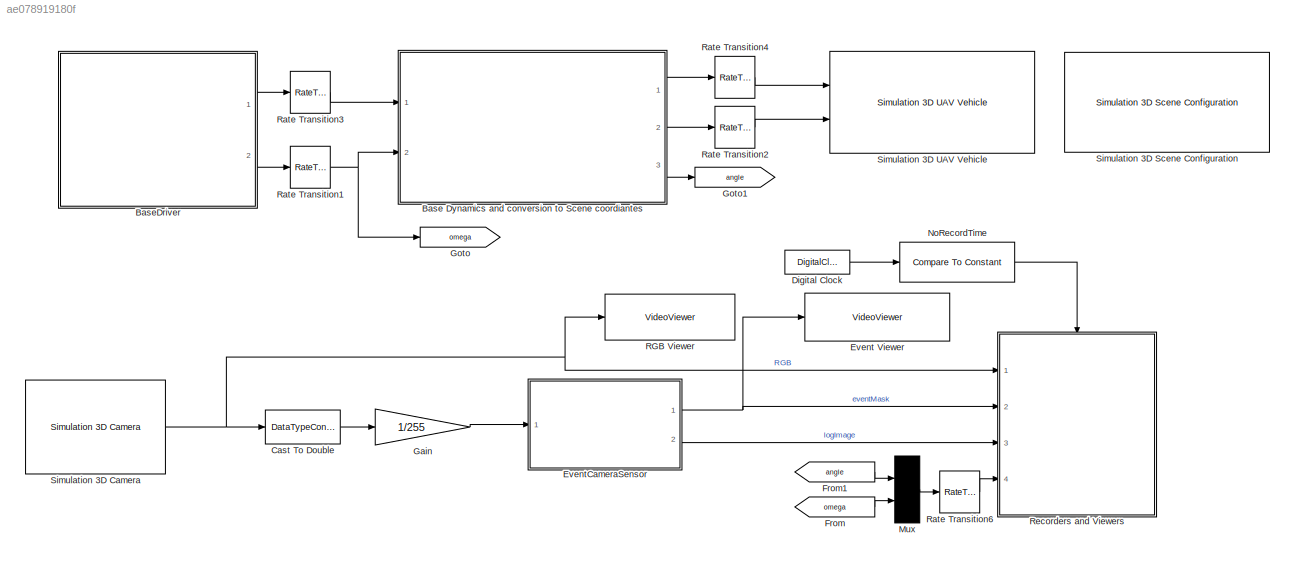
MODEL slx_ae078919180f
KIND model
CONFIG AbsTol = auto
CONFIG EnableMultiTasking = off
CONFIG FixedStep = auto
CONFIG MaxStep = auto
CONFIG MinStep = auto
CONFIG RelTol = 1e-3
CONFIG SampleTimeConstraint = Unconstrained
CONFIG SolverName = VariableStepAuto
CONFIG StartTime = 0.0
CONFIG StopTime = 100
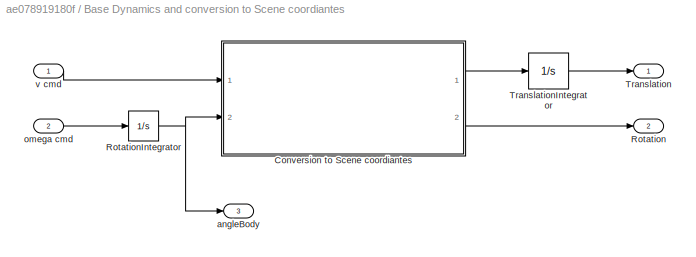
BLOCK [SubSystem] Base Dynamics and conversion to Scene coordiantes
  Ports = [2, 3]
  RequestExecContextInheritance = off
  TreatAsAtomicUnit = on
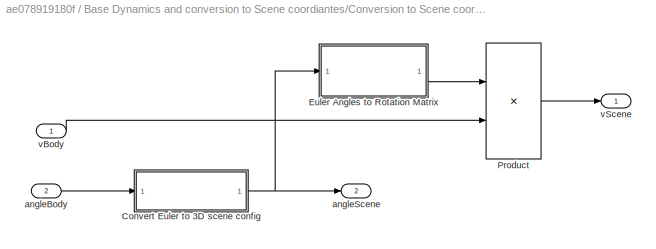
BLOCK [SubSystem] Base Dynamics and conversion to Scene coordiantes/Conversion to Scene coordiantes
  Ports = [2, 2]
  RequestExecContextInheritance = off
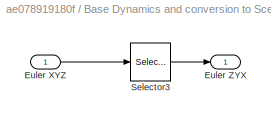
BLOCK [SubSystem] Base Dynamics and conversion to Scene coordiantes/Conversion to Scene coordiantes/Convert Euler to 3D scene config
  Ports = [1, 1]
  RequestExecContextInheritance = off
BLOCK [Inport] Base Dynamics and conversion to Scene coordiantes/Conversion to Scene coordiantes/Convert Euler to 3D scene config/Euler XYZ
BLOCK [Outport] Base Dynamics and conversion to Scene coordiantes/Conversion to Scene coordiantes/Convert Euler to 3D scene config/Euler ZYX
BLOCK [Selector] Base Dynamics and conversion to Scene coordiantes/Conversion to Scene coordiantes/Convert Euler to 3D scene config/Selector3
  IndexOptions = Index vector (dialog)
  Indices = [3 2 1]
  InputPortWidth = 3
  OutputSizes = 1
  Ports = [1, 1]
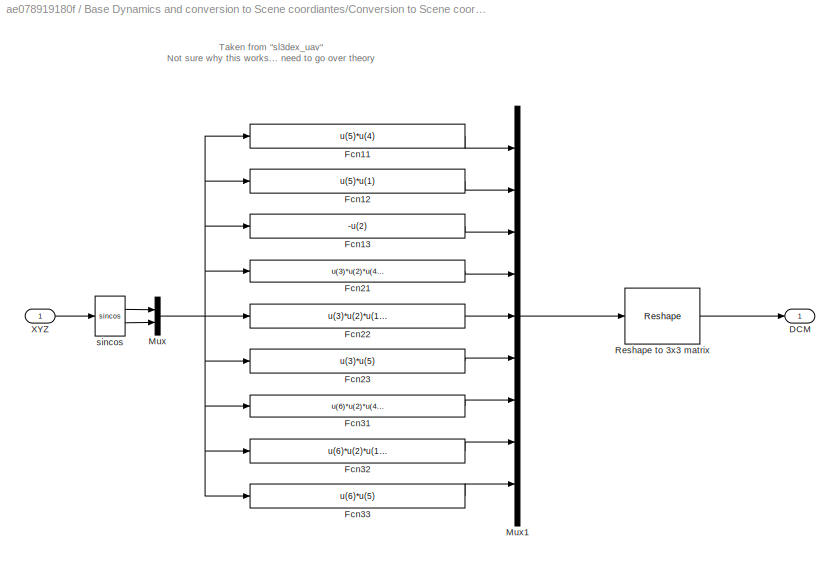
BLOCK [SubSystem] Base Dynamics and conversion to Scene coordiantes/Conversion to Scene coordiantes/Euler Angles to Rotation Matrix
  Ports = [1, 1]
  RequestExecContextInheritance = off
BLOCK [Outport] Base Dynamics and conversion to Scene coordiantes/Conversion to Scene coordiantes/Euler Angles to Rotation Matrix/DCM
  NameLocation = top
  PortDimensions = [3,3]
  Unit = 1
  VectorParamsAs1DForOutWhenUnconnected = off
BLOCK [Fcn] Base Dynamics and conversion to Scene coordiantes/Conversion to Scene coordiantes/Euler Angles to Rotation Matrix/Fcn11
  Expr = u(5)*u(4)
BLOCK [Fcn] Base Dynamics and conversion to Scene coordiantes/Conversion to Scene coordiantes/Euler Angles to Rotation Matrix/Fcn12
  Expr = u(5)*u(1)
BLOCK [Fcn] Base Dynamics and conversion to Scene coordiantes/Conversion to Scene coordiantes/Euler Angles to Rotation Matrix/Fcn13
  Expr = -u(2)
BLOCK [Fcn] Base Dynamics and conversion to Scene coordiantes/Conversion to Scene coordiantes/Euler Angles to Rotation Matrix/Fcn21
  Expr = u(3)*u(2)*u(4) - u(6)*u(1)
BLOCK [Fcn] Base Dynamics and conversion to Scene coordiantes/Conversion to Scene coordiantes/Euler Angles to Rotation Matrix/Fcn22
  Expr = u(3)*u(2)*u(1) + u(6)*u(4)
BLOCK [Fcn] Base Dynamics and conversion to Scene coordiantes/Conversion to Scene coordiantes/Euler Angles to Rotation Matrix/Fcn23
  Expr = u(3)*u(5)
BLOCK [Fcn] Base Dynamics and conversion to Scene coordiantes/Conversion to Scene coordiantes/Euler Angles to Rotation Matrix/Fcn31
  Expr = u(6)*u(2)*u(4) + u(3)*u(1)
BLOCK [Fcn] Base Dynamics and conversion to Scene coordiantes/Conversion to Scene coordiantes/Euler Angles to Rotation Matrix/Fcn32
  Expr = u(6)*u(2)*u(1) - u(3)*u(4)
BLOCK [Fcn] Base Dynamics and conversion to Scene coordiantes/Conversion to Scene coordiantes/Euler Angles to Rotation Matrix/Fcn33
  Expr = u(6)*u(5)
BLOCK [Mux] Base Dynamics and conversion to Scene coordiantes/Conversion to Scene coordiantes/Euler Angles to Rotation Matrix/Mux
  DisplayOption = bar
  Inputs = 2
  Ports = [2, 1]
BLOCK [Mux] Base Dynamics and conversion to Scene coordiantes/Conversion to Scene coordiantes/Euler Angles to Rotation Matrix/Mux1
  DisplayOption = bar
  Inputs = 9
  Ports = [9, 1]
BLOCK [Reshape] Base Dynamics and conversion to Scene coordiantes/Conversion to Scene coordiantes/Euler Angles to Rotation Matrix/Reshape to 3x3 matrix
  OutputDimensionality = Customize
  OutputDimensions = [3,3]
  Ports = [1, 1]
BLOCK [Inport] Base Dynamics and conversion to Scene coordiantes/Conversion to Scene coordiantes/Euler Angles to Rotation Matrix/XYZ
BLOCK [Trigonometry] Base Dynamics and conversion to Scene coordiantes/Conversion to Scene coordiantes/Euler Angles to Rotation Matrix/sincos
  Operator = sincos
  Ports = [1, 2]
BLOCK [Product] Base Dynamics and conversion to Scene coordiantes/Conversion to Scene coordiantes/Product
  Multiplication = Matrix(*)
  Ports = [2, 1]
BLOCK [Inport] Base Dynamics and conversion to Scene coordiantes/Conversion to Scene coordiantes/angleBody
  Port = 2
BLOCK [Outport] Base Dynamics and conversion to Scene coordiantes/Conversion to Scene coordiantes/angleScene
  Port = 2
BLOCK [Inport] Base Dynamics and conversion to Scene coordiantes/Conversion to Scene coordiantes/vBody
BLOCK [Outport] Base Dynamics and conversion to Scene coordiantes/Conversion to Scene coordiantes/vScene
BLOCK [Outport] Base Dynamics and conversion to Scene coordiantes/Rotation
  Port = 2
BLOCK [Integrator] Base Dynamics and conversion to Scene coordiantes/RotationIntegrator
  InitialCondition = [0  0  0]
  Ports = [1, 1]
BLOCK [Outport] Base Dynamics and conversion to Scene coordiantes/Translation
BLOCK [Integrator] Base Dynamics and conversion to Scene coordiantes/TranslationIntegrator
  InitialCondition = InitalDroneXYZ
  Ports = [1, 1]
BLOCK [Outport] Base Dynamics and conversion to Scene coordiantes/angleBody
  Port = 3
BLOCK [Inport] Base Dynamics and conversion to Scene coordiantes/omega cmd
  Port = 2
BLOCK [Inport] Base Dynamics and conversion to Scene coordiantes/v cmd
BLOCK [SubSystem] BaseDriver
  Ports = [0, 2]
  ReferencedSubsystem = BaseDriver
  RequestExecContextInheritance = off
  TreatAsAtomicUnit = on
BLOCK [DataTypeConversion] Cast To Double
  NameLocation = top
  OutDataTypeStr = double
  RndMeth = Floor
  SaturateOnIntegerOverflow = off
BLOCK [DigitalClock] Digital Clock
  SampleTime = ts_camera
BLOCK [VideoViewer] Event Viewer
  Commented = on
  FigPos = [728.2 681.2 676.8 413.6]
  Ports = [1]
  ScopeSpecificationString = vipscopes.VideoViewerScopeCfg('CurrentConfiguration', extmgr.ConfigurationSet(extmgr.Configuration('Core','General UI',true),extmgr.Configuration('Core','Source UI',true),extmgr.Configuration('Sources','WiredSimulink',true),extmgr.Configuration('Visuals','Video',true),extmgr.Configuration('Tools','Image Navigation Tools',true,'FitToView',true),extmgr.Configuration('Tools','Image Tool',true),extmgr...<+126ch>
  colormapValue = gray(256)
BLOCK [ModelReference] EventCameraSensor
  ModelNameDialog = EventCameraSensor
  ModelReferenceVersion = 1.60
  Ports = [1, 2]
BLOCK [From] From
  GotoTag = omega
BLOCK [From] From1
  GotoTag = angle
BLOCK [Gain] Gain
  Gain = 1/255
  NameLocation = top
BLOCK [Goto] Goto
  GotoTag = omega
BLOCK [Goto] Goto1
  GotoTag = angle
BLOCK [Mux] Mux
  DisplayOption = bar
  Inputs = 2
  Ports = [2, 1]
BLOCK [Reference] NoRecordTime  REF=simulink/Logic and Bit
Operations/Compare
To Constant
  Ports = [1, 1]
  SourceBlock = simulink/Logic and Bit\nOperations/Compare\nTo Constant
  SourceProductBaseCode = SL
  SourceType = Compare To Constant
BLOCK [VideoViewer] RGB Viewer
  Commented = on
  FigPos = [669.8 730.8 733.6 478.4]
  Ports = [1]
  ScopeSpecificationString = vipscopes.VideoViewerScopeCfg('CurrentConfiguration', extmgr.ConfigurationSet(extmgr.Configuration('Core','General UI',true),extmgr.Configuration('Core','Source UI',true),extmgr.Configuration('Sources','WiredSimulink',true),extmgr.Configuration('Visuals','Video',true),extmgr.Configuration('Tools','Image Navigation Tools',true),extmgr.Configuration('Tools','Image Tool',true),extmgr.Configuration('T...<+83ch>
BLOCK [RateTransition] Rate Transition1
  OutPortSampleTime = 0
BLOCK [RateTransition] Rate Transition2
BLOCK [RateTransition] Rate Transition3
  OutPortSampleTime = 0
BLOCK [RateTransition] Rate Transition4
BLOCK [RateTransition] Rate Transition6
  OutPortSampleTime = ts_camera
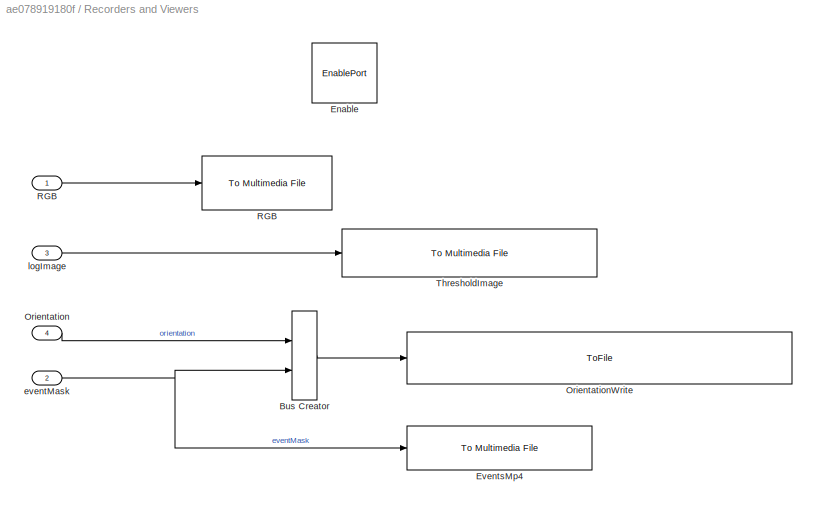
BLOCK [SubSystem] Recorders and Viewers
  Ports = [4, 0, 1]
  RequestExecContextInheritance = off
BLOCK [BusCreator] Recorders and Viewers/Bus Creator
  DisplayOption = bar
  InheritFromInputs = on
  Inputs = 2
  Ports = [2, 1]
BLOCK [EnablePort] Recorders and Viewers/Enable
  Ports = []
BLOCK [Reference] Recorders and Viewers/EventsMp4  REF=dspvision/To Multimedia File
  Ports = [1]
  SourceBlock = dspvision/To Multimedia File
  SourceProductBaseCode = DS,HW,VP
  SourceType = To Multimedia File
BLOCK [Inport] Recorders and Viewers/Orientation
  Port = 4
BLOCK [ToFile] Recorders and Viewers/OrientationWrite
  Filename = <userpath>\Desktop\Technion\EventCameraStablization\DeepLearning\Data\data.mat
  MatrixName = data
  Ports = [1]
  SaveFormat = Timeseries
BLOCK [Inport] Recorders and Viewers/RGB
BLOCK [Reference] Recorders and Viewers/RGB   REF=dspvision/To Multimedia File
  Ports = [1]
  SourceBlock = dspvision/To Multimedia File
  SourceProductBaseCode = DS,HW,VP
  SourceType = To Multimedia File
BLOCK [Reference] Recorders and Viewers/ThresholdImage  REF=dspvision/To Multimedia File
  Ports = [1]
  SourceBlock = dspvision/To Multimedia File
  SourceProductBaseCode = DS,HW,VP
  SourceType = To Multimedia File
BLOCK [Inport] Recorders and Viewers/eventMask
  Port = 2
BLOCK [Inport] Recorders and Viewers/logImage
  Port = 3
BLOCK [Reference] Simulation 3D Camera  REF=sim3dcameralib/Simulation 3D Camera
  Ports = [0, 1]
  Priority = 1
  SourceBlock = sim3dcameralib/Simulation 3D Camera
  SourceProductBaseCode = DR,UV,VE
  SourceType = Simulation 3D Camera
BLOCK [Reference] Simulation 3D Scene Configuration  REF=sim3dlib/Simulation 3D Scene Configuration
  Ports = []
  Priority = 0
  SourceBlock = sim3dlib/Simulation 3D Scene Configuration
  SourceProductBaseCode = DR,UV,VE
  SourceType = Simulation 3D Scene Configuration
BLOCK [Reference] Simulation 3D UAV Vehicle  REF=uavsim3dlib/Simulation 3D UAV Vehicle
  Ports = [2]
  SourceBlock = uavsim3dlib/Simulation 3D UAV Vehicle
  SourceProductName = UAV Toolbox
  SourceType = Simulation 3D UAV Vehicle
ANNOTATION Base Dynamics and conversion to Scene coordiantes/Conversion to Scene coordiantes/Euler Angles to Rotation Matrix: Taken from "sl3dex_uav" Not sure why this works... need to go over theory
LINE Base Dynamics and conversion to Scene coordiantes/Conversion to Scene coordiantes/Convert Euler to 3D scene config/Euler XYZ:1 -> Base Dynamics and conversion to Scene coordiantes/Conversion to Scene coordiantes/Convert Euler to 3D scene config/Selector3:1
LINE Base Dynamics and conversion to Scene coordiantes/Conversion to Scene coordiantes/Convert Euler to 3D scene config/Selector3:1 -> Base Dynamics and conversion to Scene coordiantes/Conversion to Scene coordiantes/Convert Euler to 3D scene config/Euler ZYX:1
NET Base Dynamics and conversion to Scene coordiantes/Conversion to Scene coordiantes/Convert Euler to 3D scene config:1 -> Base Dynamics and conversion to Scene coordiantes/Conversion to Scene coordiantes/Euler Angles to Rotation Matrix:1, Base Dynamics and conversion to Scene coordiantes/Conversion to Scene coordiantes/angleScene:1
LINE Base Dynamics and conversion to Scene coordiantes/Conversion to Scene coordiantes/Euler Angles to Rotation Matrix/Fcn11:1 -> Base Dynamics and conversion to Scene coordiantes/Conversion to Scene coordiantes/Euler Angles to Rotation Matrix/Mux1:1
LINE Base Dynamics and conversion to Scene coordiantes/Conversion to Scene coordiantes/Euler Angles to Rotation Matrix/Fcn12:1 -> Base Dynamics and conversion to Scene coordiantes/Conversion to Scene coordiantes/Euler Angles to Rotation Matrix/Mux1:2
LINE Base Dynamics and conversion to Scene coordiantes/Conversion to Scene coordiantes/Euler Angles to Rotation Matrix/Fcn13:1 -> Base Dynamics and conversion to Scene coordiantes/Conversion to Scene coordiantes/Euler Angles to Rotation Matrix/Mux1:3
LINE Base Dynamics and conversion to Scene coordiantes/Conversion to Scene coordiantes/Euler Angles to Rotation Matrix/Fcn21:1 -> Base Dynamics and conversion to Scene coordiantes/Conversion to Scene coordiantes/Euler Angles to Rotation Matrix/Mux1:4
LINE Base Dynamics and conversion to Scene coordiantes/Conversion to Scene coordiantes/Euler Angles to Rotation Matrix/Fcn22:1 -> Base Dynamics and conversion to Scene coordiantes/Conversion to Scene coordiantes/Euler Angles to Rotation Matrix/Mux1:5
LINE Base Dynamics and conversion to Scene coordiantes/Conversion to Scene coordiantes/Euler Angles to Rotation Matrix/Fcn23:1 -> Base Dynamics and conversion to Scene coordiantes/Conversion to Scene coordiantes/Euler Angles to Rotation Matrix/Mux1:6
LINE Base Dynamics and conversion to Scene coordiantes/Conversion to Scene coordiantes/Euler Angles to Rotation Matrix/Fcn31:1 -> Base Dynamics and conversion to Scene coordiantes/Conversion to Scene coordiantes/Euler Angles to Rotation Matrix/Mux1:7
LINE Base Dynamics and conversion to Scene coordiantes/Conversion to Scene coordiantes/Euler Angles to Rotation Matrix/Fcn32:1 -> Base Dynamics and conversion to Scene coordiantes/Conversion to Scene coordiantes/Euler Angles to Rotation Matrix/Mux1:8
LINE Base Dynamics and conversion to Scene coordiantes/Conversion to Scene coordiantes/Euler Angles to Rotation Matrix/Fcn33:1 -> Base Dynamics and conversion to Scene coordiantes/Conversion to Scene coordiantes/Euler Angles to Rotation Matrix/Mux1:9
LINE Base Dynamics and conversion to Scene coordiantes/Conversion to Scene coordiantes/Euler Angles to Rotation Matrix/Mux1:1 -> Base Dynamics and conversion to Scene coordiantes/Conversion to Scene coordiantes/Euler Angles to Rotation Matrix/Reshape to 3x3 matrix:1
NET Base Dynamics and conversion to Scene coordiantes/Conversion to Scene coordiantes/Euler Angles to Rotation Matrix/Mux:1 -> Base Dynamics and conversion to Scene coordiantes/Conversion to Scene coordiantes/Euler Angles to Rotation Matrix/Fcn11:1, Base Dynamics and conversion to Scene coordiantes/Conversion to Scene coordiantes/Euler Angles to Rotation Matrix/Fcn12:1, Base Dynamics and conversion to Scene coordiantes/Conversion to Scene coordiantes/Euler Angles to Rotation Matrix/Fcn13:1, Base Dynamics and conversion to Scene coordiantes/Conversion to Scene coordiantes/Euler Angles to Rotation Matrix/Fcn21:1, Base Dynamics and conversion to Scene coordiantes/Conversion to Scene coordiantes/Euler Angles to Rotation Matrix/Fcn22:1, Base Dynamics and conversion to Scene coordiantes/Conversion to Scene coordiantes/Euler Angles to Rotation Matrix/Fcn23:1, Base Dynamics and conversion to Scene coordiantes/Conversion to Scene coordiantes/Euler Angles to Rotation Matrix/Fcn31:1, Base Dynamics and conversion to Scene coordiantes/Conversion to Scene coordiantes/Euler Angles to Rotation Matrix/Fcn32:1, Base Dynamics and conversion to Scene coordiantes/Conversion to Scene coordiantes/Euler Angles to Rotation Matrix/Fcn33:1
LINE Base Dynamics and conversion to Scene coordiantes/Conversion to Scene coordiantes/Euler Angles to Rotation Matrix/Reshape to 3x3 matrix:1 -> Base Dynamics and conversion to Scene coordiantes/Conversion to Scene coordiantes/Euler Angles to Rotation Matrix/DCM:1
LINE Base Dynamics and conversion to Scene coordiantes/Conversion to Scene coordiantes/Euler Angles to Rotation Matrix/XYZ:1 -> Base Dynamics and conversion to Scene coordiantes/Conversion to Scene coordiantes/Euler Angles to Rotation Matrix/sincos:1
LINE Base Dynamics and conversion to Scene coordiantes/Conversion to Scene coordiantes/Euler Angles to Rotation Matrix/sincos:1 -> Base Dynamics and conversion to Scene coordiantes/Conversion to Scene coordiantes/Euler Angles to Rotation Matrix/Mux:1
LINE Base Dynamics and conversion to Scene coordiantes/Conversion to Scene coordiantes/Euler Angles to Rotation Matrix/sincos:2 -> Base Dynamics and conversion to Scene coordiantes/Conversion to Scene coordiantes/Euler Angles to Rotation Matrix/Mux:2
LINE Base Dynamics and conversion to Scene coordiantes/Conversion to Scene coordiantes/Euler Angles to Rotation Matrix:1 -> Base Dynamics and conversion to Scene coordiantes/Conversion to Scene coordiantes/Product:1
LINE Base Dynamics and conversion to Scene coordiantes/Conversion to Scene coordiantes/Product:1 -> Base Dynamics and conversion to Scene coordiantes/Conversion to Scene coordiantes/vScene:1
LINE Base Dynamics and conversion to Scene coordiantes/Conversion to Scene coordiantes/angleBody:1 -> Base Dynamics and conversion to Scene coordiantes/Conversion to Scene coordiantes/Convert Euler to 3D scene config:1
LINE Base Dynamics and conversion to Scene coordiantes/Conversion to Scene coordiantes/vBody:1 -> Base Dynamics and conversion to Scene coordiantes/Conversion to Scene coordiantes/Product:2
LINE Base Dynamics and conversion to Scene coordiantes/Conversion to Scene coordiantes:1 -> Base Dynamics and conversion to Scene coordiantes/TranslationIntegrator:1
LINE Base Dynamics and conversion to Scene coordiantes/Conversion to Scene coordiantes:2 -> Base Dynamics and conversion to Scene coordiantes/Rotation:1
NET Base Dynamics and conversion to Scene coordiantes/RotationIntegrator:1 -> Base Dynamics and conversion to Scene coordiantes/Conversion to Scene coordiantes:2, Base Dynamics and conversion to Scene coordiantes/angleBody:1
LINE Base Dynamics and conversion to Scene coordiantes/TranslationIntegrator:1 -> Base Dynamics and conversion to Scene coordiantes/Translation:1
LINE Base Dynamics and conversion to Scene coordiantes/omega cmd:1 -> Base Dynamics and conversion to Scene coordiantes/RotationIntegrator:1
LINE Base Dynamics and conversion to Scene coordiantes/v cmd:1 -> Base Dynamics and conversion to Scene coordiantes/Conversion to Scene coordiantes:1
LINE Base Dynamics and conversion to Scene coordiantes:1 -> Rate Transition4:1
LINE Base Dynamics and conversion to Scene coordiantes:2 -> Rate Transition2:1
LINE Base Dynamics and conversion to Scene coordiantes:3 -> Goto1:1
LINE BaseDriver:1 -> Rate Transition3:1
LINE BaseDriver:2 -> Rate Transition1:1
LINE Cast To Double:1 -> Gain:1
LINE Digital Clock:1 -> NoRecordTime:1
NET EventCameraSensor:1 -> Event Viewer:1, Recorders and Viewers:2
LINE EventCameraSensor:2 -> Recorders and Viewers:3
LINE From1:1 -> Mux:1
LINE From:1 -> Mux:2
LINE Gain:1 -> EventCameraSensor:1
LINE Mux:1 -> Rate Transition6:1
LINE NoRecordTime:1 -> Recorders and Viewers:enable
NET Rate Transition1:1 -> Base Dynamics and conversion to Scene coordiantes:2, Goto:1
LINE Rate Transition2:1 -> Simulation 3D UAV Vehicle:2
LINE Rate Transition3:1 -> Base Dynamics and conversion to Scene coordiantes:1
LINE Rate Transition4:1 -> Simulation 3D UAV Vehicle:1
LINE Rate Transition6:1 -> Recorders and Viewers:4
LINE Recorders and Viewers/Bus Creator:1 -> Recorders and Viewers/OrientationWrite:1
LINE Recorders and Viewers/Orientation:1 -> Recorders and Viewers/Bus Creator:1
LINE Recorders and Viewers/RGB:1 -> Recorders and Viewers/RGB :1
NET Recorders and Viewers/eventMask:1 -> Recorders and Viewers/Bus Creator:2, Recorders and Viewers/EventsMp4:1
LINE Recorders and Viewers/logImage:1 -> Recorders and Viewers/ThresholdImage:1
NET Simulation 3D Camera:1 -> Cast To Double:1, RGB Viewer:1, Recorders and Viewers:1
note: NET lines group one-source signal fan-out (src -> all destinations, sorted); 1:1 wires keep LINE
